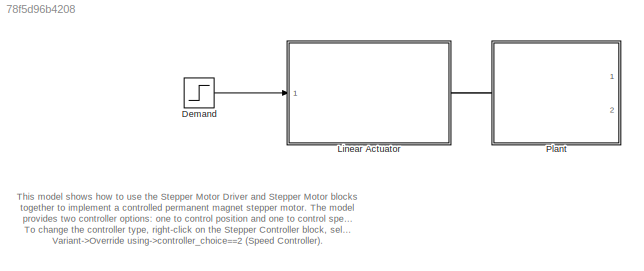
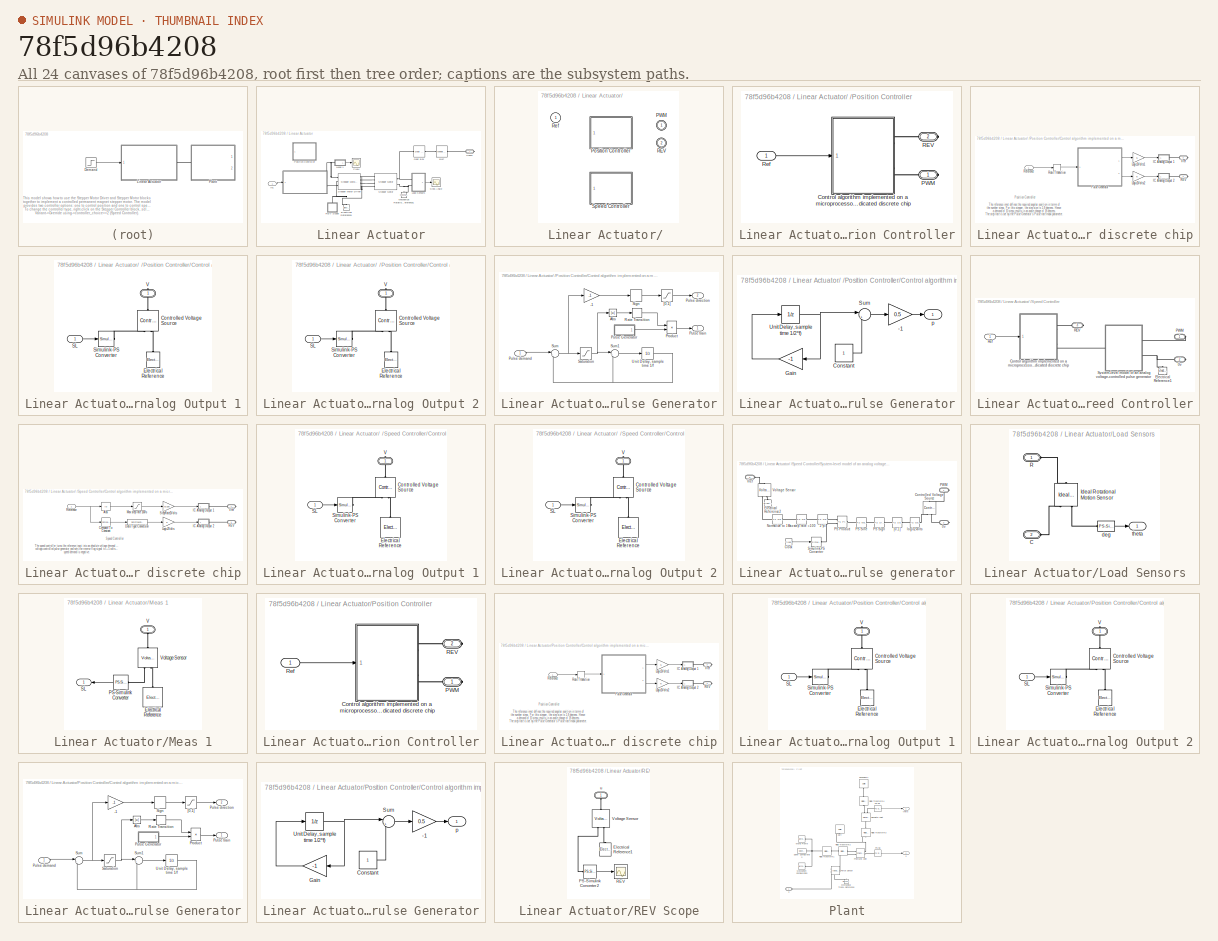
[diagram: thumbnail index - all 24 canvases of the model, root first then tree order]
MODEL slx_78f5d96b4208
KIND model
CONFIG AbsTol = auto
CONFIG FixedStep = 0.001
CONFIG MaxStep = 0.001
CONFIG MinStep = auto
CONFIG PostLoadFcn = controller_choice=1; % Controller variant
CONFIG RelTol = 1e-3
CONFIG SampleTimeConstraint = Unconstrained
CONFIG Solver = ode15s
CONFIG SolverMode = Auto
CONFIG SolverName = ode15s
CONFIG StartTime = 0.0
CONFIG StopTime = 2
BLOCK [Step] Demand
  After = 0
  Before = 10
  SampleTime = 0
BLOCK [SubSystem] Linear Actuator
  Ports = [1, 0, 0, 0, 0, 0, 1]
  RequestExecContextInheritance = off
  Variant = off
BLOCK [SubSystem] Linear Actuator/ 
  AttributesFormatString = %<BlockChoice>
  OverrideUsingVariant = controller_choice==1
  Ports = [1, 0, 0, 0, 0, 0, 2]
  RequestExecContextInheritance = off
  Variant = on
BLOCK [PMIOPort] Linear Actuator/ /PWM
  Port = 1
  Side = Right
BLOCK [SubSystem] Linear Actuator/ /Position Controller
  Ports = [1, 0, 0, 0, 0, 0, 2]
  RequestExecContextInheritance = off
  Variant = off
  VariantControl = controller_choice==1
BLOCK [SubSystem] Linear Actuator/ /Position Controller/Control algorithm implemented on a microprocessor or dedicated discrete chip
  Ports = [1, 0, 0, 0, 0, 0, 2]
  RequestExecContextInheritance = off
  Variant = off
BLOCK [SubSystem] Linear Actuator/ /Position Controller/Control algorithm implemented on a microprocessor or dedicated discrete chip/IC Analog Output 1
  Ports = [1, 0, 0, 0, 0, 0, 1]
  RequestExecContextInheritance = off
  Variant = off
BLOCK [Reference] Linear Actuator/ /Position Controller/Control algorithm implemented on a microprocessor or dedicated discrete chip/IC Analog Output 1/Controlled Voltage Source  REF=fl_lib/Electrical/Electrical Sources/Controlled Voltage
Source
  Ports = [0, 0, 0, 0, 0, 1, 2]
  SourceBlock = fl_lib/Electrical/Electrical Sources/Controlled Voltage\nSource
  SourceType = Controlled Voltage\nSource
BLOCK [Reference] Linear Actuator/ /Position Controller/Control algorithm implemented on a microprocessor or dedicated discrete chip/IC Analog Output 1/Electrical Reference  REF=fl_lib/Electrical/Electrical Elements/Electrical Reference
  Ports = [0, 0, 0, 0, 0, 1]
  SourceBlock = fl_lib/Electrical/Electrical Elements/Electrical Reference
  SourceType = Electrical Reference
BLOCK [Inport] Linear Actuator/ /Position Controller/Control algorithm implemented on a microprocessor or dedicated discrete chip/IC Analog Output 1/SL
  IconDisplay = Port number
BLOCK [Reference] Linear Actuator/ /Position Controller/Control algorithm implemented on a microprocessor or dedicated discrete chip/IC Analog Output 1/Simulink-PS Converter  REF=nesl_utility/Simulink-PS
Converter
  Ports = [1, 0, 0, 0, 0, 0, 1]
  SourceBlock = nesl_utility/Simulink-PS\nConverter
  SourceType = Simulink-PS\nConverter
BLOCK [PMIOPort] Linear Actuator/ /Position Controller/Control algorithm implemented on a microprocessor or dedicated discrete chip/IC Analog Output 1/V
  Port = 1
  Side = Right
BLOCK [SubSystem] Linear Actuator/ /Position Controller/Control algorithm implemented on a microprocessor or dedicated discrete chip/IC Analog Output 2
  Ports = [1, 0, 0, 0, 0, 0, 1]
  RequestExecContextInheritance = off
  Variant = off
BLOCK [Reference] Linear Actuator/ /Position Controller/Control algorithm implemented on a microprocessor or dedicated discrete chip/IC Analog Output 2/Controlled Voltage Source  REF=fl_lib/Electrical/Electrical Sources/Controlled Voltage
Source
  Ports = [0, 0, 0, 0, 0, 1, 2]
  SourceBlock = fl_lib/Electrical/Electrical Sources/Controlled Voltage\nSource
  SourceType = Controlled Voltage\nSource
BLOCK [Reference] Linear Actuator/ /Position Controller/Control algorithm implemented on a microprocessor or dedicated discrete chip/IC Analog Output 2/Electrical Reference  REF=fl_lib/Electrical/Electrical Elements/Electrical Reference
  Ports = [0, 0, 0, 0, 0, 1]
  SourceBlock = fl_lib/Electrical/Electrical Elements/Electrical Reference
  SourceType = Electrical Reference
BLOCK [Inport] Linear Actuator/ /Position Controller/Control algorithm implemented on a microprocessor or dedicated discrete chip/IC Analog Output 2/SL
  IconDisplay = Port number
BLOCK [Reference] Linear Actuator/ /Position Controller/Control algorithm implemented on a microprocessor or dedicated discrete chip/IC Analog Output 2/Simulink-PS Converter  REF=nesl_utility/Simulink-PS
Converter
  Ports = [1, 0, 0, 0, 0, 0, 1]
  SourceBlock = nesl_utility/Simulink-PS\nConverter
  SourceType = Simulink-PS\nConverter
BLOCK [PMIOPort] Linear Actuator/ /Position Controller/Control algorithm implemented on a microprocessor or dedicated discrete chip/IC Analog Output 2/V
  Port = 1
  Side = Right
BLOCK [Gain] Linear Actuator/ /Position Controller/Control algorithm implemented on a microprocessor or dedicated discrete chip/Logic2Volts1
  Gain = 5
  OutDataTypeStr = Inherit: Inherit via internal rule
  ParamDataTypeStr = Inherit: Inherit via internal rule
  SaturateOnIntegerOverflow = off
BLOCK [Gain] Linear Actuator/ /Position Controller/Control algorithm implemented on a microprocessor or dedicated discrete chip/Logic2Volts2
  Gain = 5
  OutDataTypeStr = Inherit: Inherit via internal rule
  ParamDataTypeStr = Inherit: Inherit via internal rule
  SaturateOnIntegerOverflow = off
BLOCK [SubSystem] Linear Actuator/ /Position Controller/Control algorithm implemented on a microprocessor or dedicated discrete chip/Pulse Generator
  Ports = [1, 2]
  RequestExecContextInheritance = off
  Variant = off
BLOCK [Gain] Linear Actuator/ /Position Controller/Control algorithm implemented on a microprocessor or dedicated discrete chip/Pulse Generator/-1
  Gain = -1
  OutDataTypeStr = Inherit: Inherit via internal rule
  ParamDataTypeStr = Inherit: Inherit via internal rule
  SaturateOnIntegerOverflow = off
BLOCK [Abs] Linear Actuator/ /Position Controller/Control algorithm implemented on a microprocessor or dedicated discrete chip/Pulse Generator/Abs
  SaturateOnIntegerOverflow = off
BLOCK [Product] Linear Actuator/ /Position Controller/Control algorithm implemented on a microprocessor or dedicated discrete chip/Pulse Generator/Product
  Ports = [2, 1]
  RndMeth = Floor
BLOCK [Inport] Linear Actuator/ /Position Controller/Control algorithm implemented on a microprocessor or dedicated discrete chip/Pulse Generator/Pulse  demand
  IconDisplay = Port number
  SampleTime = 1/f
BLOCK [SubSystem] Linear Actuator/ /Position Controller/Control algorithm implemented on a microprocessor or dedicated discrete chip/Pulse Generator/Pulse Generator
  Ports = [0, 1]
  RequestExecContextInheritance = off
  Variant = off
BLOCK [Gain] Linear Actuator/ /Position Controller/Control algorithm implemented on a microprocessor or dedicated discrete chip/Pulse Generator/Pulse Generator/-1
  Gain = 0.5
  OutDataTypeStr = Inherit: Inherit via internal rule
  ParamDataTypeStr = Inherit: Inherit via internal rule
  SaturateOnIntegerOverflow = off
BLOCK [Constant] Linear Actuator/ /Position Controller/Control algorithm implemented on a microprocessor or dedicated discrete chip/Pulse Generator/Pulse Generator/Constant
  SampleTime = 1/(2*f)
BLOCK [Gain] Linear Actuator/ /Position Controller/Control algorithm implemented on a microprocessor or dedicated discrete chip/Pulse Generator/Pulse Generator/Gain
  Gain = -1
  OutDataTypeStr = Inherit: Inherit via internal rule
  ParamDataTypeStr = Inherit: Inherit via internal rule
  SaturateOnIntegerOverflow = off
BLOCK [Sum] Linear Actuator/ /Position Controller/Control algorithm implemented on a microprocessor or dedicated discrete chip/Pulse Generator/Pulse Generator/Sum
  IconShape = round
  InputSameDT = off
  Inputs = |++
  OutDataTypeStr = Inherit: Inherit via internal rule
  Ports = [2, 1]
  SaturateOnIntegerOverflow = off
BLOCK [UnitDelay] Linear Actuator/ /Position Controller/Control algorithm implemented on a microprocessor or dedicated discrete chip/Pulse Generator/Pulse Generator/Unit Delay, sample time 1//2*f)
  InitialCondition = -1
  SampleTime = 1/(2*f)
BLOCK [Outport] Linear Actuator/ /Position Controller/Control algorithm implemented on a microprocessor or dedicated discrete chip/Pulse Generator/Pulse Generator/p
  IconDisplay = Port number
BLOCK [Outport] Linear Actuator/ /Position Controller/Control algorithm implemented on a microprocessor or dedicated discrete chip/Pulse Generator/Pulse direction
  IconDisplay = Port number
  Port = 2
BLOCK [Outport] Linear Actuator/ /Position Controller/Control algorithm implemented on a microprocessor or dedicated discrete chip/Pulse Generator/Pulse train
  IconDisplay = Port number
BLOCK [RateTransition] Linear Actuator/ /Position Controller/Control algorithm implemented on a microprocessor or dedicated discrete chip/Pulse Generator/Rate Transition
  Deterministic = off
BLOCK [Saturate] Linear Actuator/ /Position Controller/Control algorithm implemented on a microprocessor or dedicated discrete chip/Pulse Generator/Saturation
  InputPortMap = u0
  LowerLimit = -1
  Ports = [1, 1]
  UpperLimit = 1
BLOCK [Signum] Linear Actuator/ /Position Controller/Control algorithm implemented on a microprocessor or dedicated discrete chip/Pulse Generator/Sign
BLOCK [Sum] Linear Actuator/ /Position Controller/Control algorithm implemented on a microprocessor or dedicated discrete chip/Pulse Generator/Sum
  IconShape = round
  InputSameDT = off
  Inputs = |+-
  OutDataTypeStr = Inherit: Inherit via internal rule
  Ports = [2, 1]
  SaturateOnIntegerOverflow = off
BLOCK [Sum] Linear Actuator/ /Position Controller/Control algorithm implemented on a microprocessor or dedicated discrete chip/Pulse Generator/Sum1
  IconShape = round
  InputSameDT = off
  Inputs = |++
  OutDataTypeStr = Inherit: Inherit via internal rule
  Ports = [2, 1]
  SaturateOnIntegerOverflow = off
BLOCK [UnitDelay] Linear Actuator/ /Position Controller/Control algorithm implemented on a microprocessor or dedicated discrete chip/Pulse Generator/Unit Delay, sample time 1//f
  SampleTime = 1/f
BLOCK [Saturate] Linear Actuator/ /Position Controller/Control algorithm implemented on a microprocessor or dedicated discrete chip/Pulse Generator/[0,1]
  InputPortMap = u0
  LowerLimit = 0
  Ports = [1, 1]
  UpperLimit = 1
BLOCK [PMIOPort] Linear Actuator/ /Position Controller/Control algorithm implemented on a microprocessor or dedicated discrete chip/REV
  Port = 1
  Side = Right
BLOCK [RateTransition] Linear Actuator/ /Position Controller/Control algorithm implemented on a microprocessor or dedicated discrete chip/Rate Transition
  Deterministic = off
BLOCK [Inport] Linear Actuator/ /Position Controller/Control algorithm implemented on a microprocessor or dedicated discrete chip/Reference
  IconDisplay = Port number
BLOCK [PMIOPort] Linear Actuator/ /Position Controller/Control algorithm implemented on a microprocessor or dedicated discrete chip/Vref
  Port = 2
  Side = Right
BLOCK [PMIOPort] Linear Actuator/ /Position Controller/PWM
  Port = 1
  Side = Right
BLOCK [PMIOPort] Linear Actuator/ /Position Controller/REV
  Port = 2
  Side = Right
BLOCK [Inport] Linear Actuator/ /Position Controller/Ref
  IconDisplay = Port number
BLOCK [PMIOPort] Linear Actuator/ /REV
  Port = 2
  Side = Right
BLOCK [Inport] Linear Actuator/ /Ref
  IconDisplay = Port number
BLOCK [SubSystem] Linear Actuator/ /Speed Controller
  Ports = [1, 0, 0, 0, 0, 0, 3]
  RequestExecContextInheritance = off
  Variant = off
  VariantControl = controller_choice==2
BLOCK [PMIOPort] Linear Actuator/ /Speed Controller/0v
  Port = 2
  Side = Right
BLOCK [SubSystem] Linear Actuator/ /Speed Controller/Control algorithm implemented on a microprocessor or dedicated discrete chip
  Ports = [1, 0, 0, 0, 0, 0, 2]
  RequestExecContextInheritance = off
  Variant = off
BLOCK [Abs] Linear Actuator/ /Speed Controller/Control algorithm implemented on a microprocessor or dedicated discrete chip/Abs
  SaturateOnIntegerOverflow = off
BLOCK [Reference] Linear Actuator/ /Speed Controller/Control algorithm implemented on a microprocessor or dedicated discrete chip/Compare To Constant  REF=simulink/Logic and Bit
Operations/Compare
To Constant
  Ports = [1, 1]
  SourceBlock = simulink/Logic and Bit\nOperations/Compare\nTo Constant
  SourceType = Compare To Constant
BLOCK [DataTypeConversion] Linear Actuator/ /Speed Controller/Control algorithm implemented on a microprocessor or dedicated discrete chip/Data Type Conversion
  RndMeth = Floor
  SaturateOnIntegerOverflow = off
BLOCK [SubSystem] Linear Actuator/ /Speed Controller/Control algorithm implemented on a microprocessor or dedicated discrete chip/IC Analog Output 1
  Ports = [1, 0, 0, 0, 0, 0, 1]
  RequestExecContextInheritance = off
  Variant = off
BLOCK [Reference] Linear Actuator/ /Speed Controller/Control algorithm implemented on a microprocessor or dedicated discrete chip/IC Analog Output 1/Controlled Voltage Source  REF=fl_lib/Electrical/Electrical Sources/Controlled Voltage
Source
  Ports = [0, 0, 0, 0, 0, 1, 2]
  SourceBlock = fl_lib/Electrical/Electrical Sources/Controlled Voltage\nSource
  SourceType = Controlled Voltage\nSource
BLOCK [Reference] Linear Actuator/ /Speed Controller/Control algorithm implemented on a microprocessor or dedicated discrete chip/IC Analog Output 1/Electrical Reference  REF=fl_lib/Electrical/Electrical Elements/Electrical Reference
  Ports = [0, 0, 0, 0, 0, 1]
  SourceBlock = fl_lib/Electrical/Electrical Elements/Electrical Reference
  SourceType = Electrical Reference
BLOCK [Inport] Linear Actuator/ /Speed Controller/Control algorithm implemented on a microprocessor or dedicated discrete chip/IC Analog Output 1/SL
  IconDisplay = Port number
BLOCK [Reference] Linear Actuator/ /Speed Controller/Control algorithm implemented on a microprocessor or dedicated discrete chip/IC Analog Output 1/Simulink-PS Converter  REF=nesl_utility/Simulink-PS
Converter
  Ports = [1, 0, 0, 0, 0, 0, 1]
  SourceBlock = nesl_utility/Simulink-PS\nConverter
  SourceType = Simulink-PS\nConverter
BLOCK [PMIOPort] Linear Actuator/ /Speed Controller/Control algorithm implemented on a microprocessor or dedicated discrete chip/IC Analog Output 1/V
  Port = 1
  Side = Right
BLOCK [SubSystem] Linear Actuator/ /Speed Controller/Control algorithm implemented on a microprocessor or dedicated discrete chip/IC Analog Output 2
  Ports = [1, 0, 0, 0, 0, 0, 1]
  RequestExecContextInheritance = off
  Variant = off
BLOCK [Reference] Linear Actuator/ /Speed Controller/Control algorithm implemented on a microprocessor or dedicated discrete chip/IC Analog Output 2/Controlled Voltage Source  REF=fl_lib/Electrical/Electrical Sources/Controlled Voltage
Source
  Ports = [0, 0, 0, 0, 0, 1, 2]
  SourceBlock = fl_lib/Electrical/Electrical Sources/Controlled Voltage\nSource
  SourceType = Controlled Voltage\nSource
BLOCK [Reference] Linear Actuator/ /Speed Controller/Control algorithm implemented on a microprocessor or dedicated discrete chip/IC Analog Output 2/Electrical Reference  REF=fl_lib/Electrical/Electrical Elements/Electrical Reference
  Ports = [0, 0, 0, 0, 0, 1]
  SourceBlock = fl_lib/Electrical/Electrical Elements/Electrical Reference
  SourceType = Electrical Reference
BLOCK [Inport] Linear Actuator/ /Speed Controller/Control algorithm implemented on a microprocessor or dedicated discrete chip/IC Analog Output 2/SL
  IconDisplay = Port number
BLOCK [Reference] Linear Actuator/ /Speed Controller/Control algorithm implemented on a microprocessor or dedicated discrete chip/IC Analog Output 2/Simulink-PS Converter  REF=nesl_utility/Simulink-PS
Converter
  Ports = [1, 0, 0, 0, 0, 0, 1]
  SourceBlock = nesl_utility/Simulink-PS\nConverter
  SourceType = Simulink-PS\nConverter
BLOCK [PMIOPort] Linear Actuator/ /Speed Controller/Control algorithm implemented on a microprocessor or dedicated discrete chip/IC Analog Output 2/V
  Port = 1
  Side = Right
BLOCK [Gain] Linear Actuator/ /Speed Controller/Control algorithm implemented on a microprocessor or dedicated discrete chip/Logic2Volts
  Gain = 5
  OutDataTypeStr = Inherit: Inherit via internal rule
  ParamDataTypeStr = Inherit: Inherit via internal rule
  SaturateOnIntegerOverflow = off
BLOCK [Saturate] Linear Actuator/ /Speed Controller/Control algorithm implemented on a microprocessor or dedicated discrete chip/Max step rate 100//s
  InputPortMap = u0
  LowerLimit = 0
  Ports = [1, 1]
  UpperLimit = 100
BLOCK [PMIOPort] Linear Actuator/ /Speed Controller/Control algorithm implemented on a microprocessor or dedicated discrete chip/REV
  Port = 1
  Side = Right
BLOCK [Inport] Linear Actuator/ /Speed Controller/Control algorithm implemented on a microprocessor or dedicated discrete chip/Reference
  IconDisplay = Port number
BLOCK [Gain] Linear Actuator/ /Speed Controller/Control algorithm implemented on a microprocessor or dedicated discrete chip/StepRate2Volts
  Gain = 5/100
  OutDataTypeStr = Inherit: Inherit via internal rule
  ParamDataTypeStr = Inherit: Inherit via internal rule
  SaturateOnIntegerOverflow = off
BLOCK [PMIOPort] Linear Actuator/ /Speed Controller/Control algorithm implemented on a microprocessor or dedicated discrete chip/Vref
  Port = 2
  Side = Right
BLOCK [Reference] Linear Actuator/ /Speed Controller/Electrical Reference1  REF=fl_lib/Electrical/Electrical Elements/Electrical Reference
  Ports = [0, 0, 0, 0, 0, 1]
  SourceBlock = fl_lib/Electrical/Electrical Elements/Electrical Reference
  SourceType = Electrical Reference
BLOCK [PMIOPort] Linear Actuator/ /Speed Controller/PWM
  Port = 1
  Side = Right
BLOCK [PMIOPort] Linear Actuator/ /Speed Controller/REV
  Port = 3
  Side = Right
BLOCK [Inport] Linear Actuator/ /Speed Controller/Ref
  IconDisplay = Port number
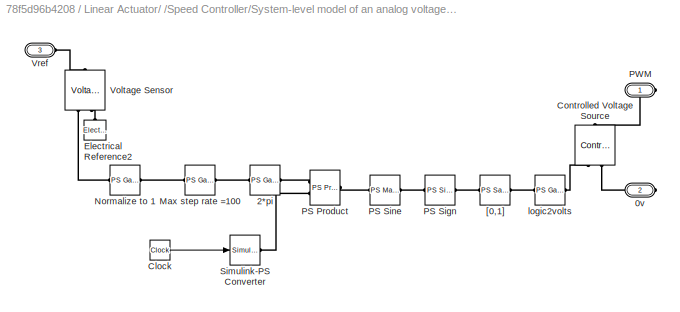
BLOCK [SubSystem] Linear Actuator/ /Speed Controller/System-level model of an analog voltage-controlled pulse generator
  Ports = [0, 0, 0, 0, 0, 1, 2]
  RequestExecContextInheritance = off
  Variant = off
BLOCK [PMIOPort] Linear Actuator/ /Speed Controller/System-level model of an analog voltage-controlled pulse generator/0v
  Port = 2
  Side = Right
BLOCK [Reference] Linear Actuator/ /Speed Controller/System-level model of an analog voltage-controlled pulse generator/2*pi  REF=fl_lib/Physical Signals/Functions/PS Gain
  Ports = [0, 0, 0, 0, 0, 1, 1]
  SourceBlock = fl_lib/Physical Signals/Functions/PS Gain
  SourceType = PS Gain
BLOCK [Clock] Linear Actuator/ /Speed Controller/System-level model of an analog voltage-controlled pulse generator/Clock
BLOCK [Reference] Linear Actuator/ /Speed Controller/System-level model of an analog voltage-controlled pulse generator/Controlled Voltage Source  REF=fl_lib/Electrical/Electrical Sources/Controlled Voltage
Source
  Ports = [0, 0, 0, 0, 0, 1, 2]
  SourceBlock = fl_lib/Electrical/Electrical Sources/Controlled Voltage\nSource
  SourceType = Controlled Voltage\nSource
BLOCK [Reference] Linear Actuator/ /Speed Controller/System-level model of an analog voltage-controlled pulse generator/Electrical Reference2  REF=fl_lib/Electrical/Electrical Elements/Electrical Reference
  Ports = [0, 0, 0, 0, 0, 1]
  SourceBlock = fl_lib/Electrical/Electrical Elements/Electrical Reference
  SourceType = Electrical Reference
BLOCK [Reference] Linear Actuator/ /Speed Controller/System-level model of an analog voltage-controlled pulse generator/Max step rate =100  REF=fl_lib/Physical Signals/Functions/PS Gain
  Ports = [0, 0, 0, 0, 0, 1, 1]
  SourceBlock = fl_lib/Physical Signals/Functions/PS Gain
  SourceType = PS Gain
BLOCK [Reference] Linear Actuator/ /Speed Controller/System-level model of an analog voltage-controlled pulse generator/Normalize to 1  REF=fl_lib/Physical Signals/Functions/PS Gain
  Ports = [0, 0, 0, 0, 0, 1, 1]
  SourceBlock = fl_lib/Physical Signals/Functions/PS Gain
  SourceType = PS Gain
BLOCK [Reference] Linear Actuator/ /Speed Controller/System-level model of an analog voltage-controlled pulse generator/PS Product  REF=fl_lib/Physical Signals/Functions/PS Product
  Ports = [0, 0, 0, 0, 0, 2, 1]
  SourceBlock = fl_lib/Physical Signals/Functions/PS Product
  SourceType = PS Product
BLOCK [Reference] Linear Actuator/ /Speed Controller/System-level model of an analog voltage-controlled pulse generator/PS Sign  REF=fl_lib/Physical Signals/Nonlinear Operators/PS Sign
  Ports = [0, 0, 0, 0, 0, 1, 1]
  SourceBlock = fl_lib/Physical Signals/Nonlinear Operators/PS Sign
  SourceType = PS Sign
BLOCK [Reference] Linear Actuator/ /Speed Controller/System-level model of an analog voltage-controlled pulse generator/PS Sine  REF=fl_lib/Physical Signals/Functions/PS Math Function
  Ports = [0, 0, 0, 0, 0, 1, 1]
  SourceBlock = fl_lib/Physical Signals/Functions/PS Math Function
  SourceType = PS Math Function
BLOCK [PMIOPort] Linear Actuator/ /Speed Controller/System-level model of an analog voltage-controlled pulse generator/PWM
  Port = 1
  Side = Right
BLOCK [Reference] Linear Actuator/ /Speed Controller/System-level model of an analog voltage-controlled pulse generator/Simulink-PS Converter  REF=nesl_utility/Simulink-PS
Converter
  Ports = [1, 0, 0, 0, 0, 0, 1]
  SourceBlock = nesl_utility/Simulink-PS\nConverter
  SourceType = Simulink-PS\nConverter
BLOCK [Reference] Linear Actuator/ /Speed Controller/System-level model of an analog voltage-controlled pulse generator/Voltage Sensor  REF=fl_lib/Electrical/Electrical Sensors/Voltage Sensor
  Ports = [0, 0, 0, 0, 0, 1, 2]
  SourceBlock = fl_lib/Electrical/Electrical Sensors/Voltage Sensor
  SourceType = Voltage Sensor
BLOCK [PMIOPort] Linear Actuator/ /Speed Controller/System-level model of an analog voltage-controlled pulse generator/Vref
  Port = 3
  Side = Left
BLOCK [Reference] Linear Actuator/ /Speed Controller/System-level model of an analog voltage-controlled pulse generator/[0,1]  REF=fl_lib/Physical Signals/Nonlinear Operators/PS Saturation
  Ports = [0, 0, 0, 0, 0, 1, 1]
  SourceBlock = fl_lib/Physical Signals/Nonlinear Operators/PS Saturation
  SourceType = PS Saturation
BLOCK [Reference] Linear Actuator/ /Speed Controller/System-level model of an analog voltage-controlled pulse generator/logic2volts  REF=fl_lib/Physical Signals/Functions/PS Gain
  Ports = [0, 0, 0, 0, 0, 1, 1]
  SourceBlock = fl_lib/Physical Signals/Functions/PS Gain
  SourceType = PS Gain
BLOCK [Reference] Linear Actuator/Belt  REF=fl_lib/Mechanical/Mechanisms/Wheel and Axle
  Ports = [0, 0, 0, 0, 0, 1, 1]
  SourceBlock = fl_lib/Mechanical/Mechanisms/Wheel and Axle
  SourceType = Wheel and Axle
BLOCK [PMIOPort] Linear Actuator/Conn1
  Port = 1
  Side = Right
BLOCK [Reference] Linear Actuator/Electrical Reference1  REF=fl_lib/Electrical/Electrical Elements/Electrical Reference
  Ports = [0, 0, 0, 0, 0, 1]
  SourceBlock = fl_lib/Electrical/Electrical Elements/Electrical Reference
  SourceType = Electrical Reference
BLOCK [Reference] Linear Actuator/Gear Box  REF=fl_lib/Mechanical/Mechanisms/Gear Box
  Ports = [0, 0, 0, 0, 0, 1, 1]
  SourceBlock = fl_lib/Mechanical/Mechanisms/Gear Box
  SourceType = Gear Box
BLOCK [Inport] Linear Actuator/In1
  IconDisplay = Port number
BLOCK [SubSystem] Linear Actuator/Load Sensors
  Ports = [0, 1, 0, 0, 0, 2]
  RequestExecContextInheritance = off
  Variant = off
BLOCK [PMIOPort] Linear Actuator/Load Sensors/C
  Port = 2
  Side = Left
BLOCK [Reference] Linear Actuator/Load Sensors/Ideal Rotational Motion Sensor  REF=fl_lib/Mechanical/Mechanical Sensors/Ideal Rotational
Motion Sensor
  Ports = [0, 0, 0, 0, 0, 1, 3]
  SourceBlock = fl_lib/Mechanical/Mechanical Sensors/Ideal Rotational\nMotion Sensor
  SourceType = Ideal Rotational\nMotion Sensor
BLOCK [PMIOPort] Linear Actuator/Load Sensors/R
  Port = 1
  Side = Left
BLOCK [Reference] Linear Actuator/Load Sensors/deg  REF=nesl_utility/PS-Simulink
Converter
  Ports = [0, 1, 0, 0, 0, 1]
  SourceBlock = nesl_utility/PS-Simulink\nConverter
  SourceType = PS-Simulink\nConverter
BLOCK [Outport] Linear Actuator/Load Sensors/theta
  IconDisplay = Port number
BLOCK [SubSystem] Linear Actuator/Meas 1
  Ports = [0, 1, 0, 0, 0, 1]
  RequestExecContextInheritance = off
  Variant = off
BLOCK [Reference] Linear Actuator/Meas 1/Electrical Reference  REF=fl_lib/Electrical/Electrical Elements/Electrical Reference
  Ports = [0, 0, 0, 0, 0, 1]
  SourceBlock = fl_lib/Electrical/Electrical Elements/Electrical Reference
  SourceType = Electrical Reference
BLOCK [Reference] Linear Actuator/Meas 1/PS-Simulink Converter  REF=nesl_utility/PS-Simulink
Converter
  Ports = [0, 1, 0, 0, 0, 1]
  SourceBlock = nesl_utility/PS-Simulink\nConverter
  SourceType = PS-Simulink\nConverter
BLOCK [Outport] Linear Actuator/Meas 1/SL
  IconDisplay = Port number
BLOCK [PMIOPort] Linear Actuator/Meas 1/V
  Port = 1
  Side = Left
BLOCK [Reference] Linear Actuator/Meas 1/Voltage Sensor  REF=fl_lib/Electrical/Electrical Sensors/Voltage Sensor
  Ports = [0, 0, 0, 0, 0, 1, 2]
  SourceBlock = fl_lib/Electrical/Electrical Sensors/Voltage Sensor
  SourceType = Voltage Sensor
BLOCK [Reference] Linear Actuator/Mechanical Rotational Reference1  REF=fl_lib/Mechanical/Rotational Elements/Mechanical
Rotational Reference
  Ports = [0, 0, 0, 0, 0, 1]
  SourceBlock = fl_lib/Mechanical/Rotational Elements/Mechanical\nRotational Reference
  SourceType = Mechanical\nRotational Reference
BLOCK [Scope] Linear Actuator/PWM
  Ports = [1]
  ScopeSpecificationString = Simulink.scopes.TimeScopeBlockCfg('CurrentConfiguration', extmgr.ConfigurationSet(extmgr.Configuration('Core','General UI',true),extmgr.Configuration('Core','Source UI',true),extmgr.Configuration('Sources','WiredSimulink',true,'DataLogging',true,'DataLoggingVariableName','RPM','DataLoggingSaveFormat','StructureWithTime','DataLoggingDecimation','1','DataLoggingDecimateData',true),extmgr.Configurati...<+1675ch>
BLOCK [SubSystem] Linear Actuator/Position Controller
  Ports = [1, 0, 0, 0, 0, 0, 2]
  RequestExecContextInheritance = off
  Variant = off
  VariantControl = controller_choice==1
BLOCK [SubSystem] Linear Actuator/Position Controller/Control algorithm implemented on a microprocessor or dedicated discrete chip
  Ports = [1, 0, 0, 0, 0, 0, 2]
  RequestExecContextInheritance = off
  Variant = off
BLOCK [SubSystem] Linear Actuator/Position Controller/Control algorithm implemented on a microprocessor or dedicated discrete chip/IC Analog Output 1
  Ports = [1, 0, 0, 0, 0, 0, 1]
  RequestExecContextInheritance = off
  Variant = off
BLOCK [Reference] Linear Actuator/Position Controller/Control algorithm implemented on a microprocessor or dedicated discrete chip/IC Analog Output 1/Controlled Voltage Source  REF=fl_lib/Electrical/Electrical Sources/Controlled Voltage
Source
  Ports = [0, 0, 0, 0, 0, 1, 2]
  SourceBlock = fl_lib/Electrical/Electrical Sources/Controlled Voltage\nSource
  SourceType = Controlled Voltage\nSource
BLOCK [Reference] Linear Actuator/Position Controller/Control algorithm implemented on a microprocessor or dedicated discrete chip/IC Analog Output 1/Electrical Reference  REF=fl_lib/Electrical/Electrical Elements/Electrical Reference
  Ports = [0, 0, 0, 0, 0, 1]
  SourceBlock = fl_lib/Electrical/Electrical Elements/Electrical Reference
  SourceType = Electrical Reference
BLOCK [Inport] Linear Actuator/Position Controller/Control algorithm implemented on a microprocessor or dedicated discrete chip/IC Analog Output 1/SL
  IconDisplay = Port number
BLOCK [Reference] Linear Actuator/Position Controller/Control algorithm implemented on a microprocessor or dedicated discrete chip/IC Analog Output 1/Simulink-PS Converter  REF=nesl_utility/Simulink-PS
Converter
  Ports = [1, 0, 0, 0, 0, 0, 1]
  SourceBlock = nesl_utility/Simulink-PS\nConverter
  SourceType = Simulink-PS\nConverter
BLOCK [PMIOPort] Linear Actuator/Position Controller/Control algorithm implemented on a microprocessor or dedicated discrete chip/IC Analog Output 1/V
  Port = 1
  Side = Right
BLOCK [SubSystem] Linear Actuator/Position Controller/Control algorithm implemented on a microprocessor or dedicated discrete chip/IC Analog Output 2
  Ports = [1, 0, 0, 0, 0, 0, 1]
  RequestExecContextInheritance = off
  Variant = off
BLOCK [Reference] Linear Actuator/Position Controller/Control algorithm implemented on a microprocessor or dedicated discrete chip/IC Analog Output 2/Controlled Voltage Source  REF=fl_lib/Electrical/Electrical Sources/Controlled Voltage
Source
  Ports = [0, 0, 0, 0, 0, 1, 2]
  SourceBlock = fl_lib/Electrical/Electrical Sources/Controlled Voltage\nSource
  SourceType = Controlled Voltage\nSource
BLOCK [Reference] Linear Actuator/Position Controller/Control algorithm implemented on a microprocessor or dedicated discrete chip/IC Analog Output 2/Electrical Reference  REF=fl_lib/Electrical/Electrical Elements/Electrical Reference
  Ports = [0, 0, 0, 0, 0, 1]
  SourceBlock = fl_lib/Electrical/Electrical Elements/Electrical Reference
  SourceType = Electrical Reference
BLOCK [Inport] Linear Actuator/Position Controller/Control algorithm implemented on a microprocessor or dedicated discrete chip/IC Analog Output 2/SL
  IconDisplay = Port number
BLOCK [Reference] Linear Actuator/Position Controller/Control algorithm implemented on a microprocessor or dedicated discrete chip/IC Analog Output 2/Simulink-PS Converter  REF=nesl_utility/Simulink-PS
Converter
  Ports = [1, 0, 0, 0, 0, 0, 1]
  SourceBlock = nesl_utility/Simulink-PS\nConverter
  SourceType = Simulink-PS\nConverter
BLOCK [PMIOPort] Linear Actuator/Position Controller/Control algorithm implemented on a microprocessor or dedicated discrete chip/IC Analog Output 2/V
  Port = 1
  Side = Right
BLOCK [Gain] Linear Actuator/Position Controller/Control algorithm implemented on a microprocessor or dedicated discrete chip/Logic2Volts1
  Gain = 5
  OutDataTypeStr = Inherit: Inherit via internal rule
  ParamDataTypeStr = Inherit: Inherit via internal rule
  SaturateOnIntegerOverflow = off
BLOCK [Gain] Linear Actuator/Position Controller/Control algorithm implemented on a microprocessor or dedicated discrete chip/Logic2Volts2
  Gain = 5
  OutDataTypeStr = Inherit: Inherit via internal rule
  ParamDataTypeStr = Inherit: Inherit via internal rule
  SaturateOnIntegerOverflow = off
BLOCK [SubSystem] Linear Actuator/Position Controller/Control algorithm implemented on a microprocessor or dedicated discrete chip/Pulse Generator
  Ports = [1, 2]
  RequestExecContextInheritance = off
  Variant = off
BLOCK [Gain] Linear Actuator/Position Controller/Control algorithm implemented on a microprocessor or dedicated discrete chip/Pulse Generator/-1
  Gain = -1
  OutDataTypeStr = Inherit: Inherit via internal rule
  ParamDataTypeStr = Inherit: Inherit via internal rule
  SaturateOnIntegerOverflow = off
BLOCK [Abs] Linear Actuator/Position Controller/Control algorithm implemented on a microprocessor or dedicated discrete chip/Pulse Generator/Abs
  SaturateOnIntegerOverflow = off
BLOCK [Product] Linear Actuator/Position Controller/Control algorithm implemented on a microprocessor or dedicated discrete chip/Pulse Generator/Product
  Ports = [2, 1]
  RndMeth = Floor
BLOCK [Inport] Linear Actuator/Position Controller/Control algorithm implemented on a microprocessor or dedicated discrete chip/Pulse Generator/Pulse  demand
  IconDisplay = Port number
  SampleTime = 1/f
BLOCK [SubSystem] Linear Actuator/Position Controller/Control algorithm implemented on a microprocessor or dedicated discrete chip/Pulse Generator/Pulse Generator
  Ports = [0, 1]
  RequestExecContextInheritance = off
  Variant = off
BLOCK [Gain] Linear Actuator/Position Controller/Control algorithm implemented on a microprocessor or dedicated discrete chip/Pulse Generator/Pulse Generator/-1
  Gain = 0.5
  OutDataTypeStr = Inherit: Inherit via internal rule
  ParamDataTypeStr = Inherit: Inherit via internal rule
  SaturateOnIntegerOverflow = off
BLOCK [Constant] Linear Actuator/Position Controller/Control algorithm implemented on a microprocessor or dedicated discrete chip/Pulse Generator/Pulse Generator/Constant
  SampleTime = 1/(2*f)
BLOCK [Gain] Linear Actuator/Position Controller/Control algorithm implemented on a microprocessor or dedicated discrete chip/Pulse Generator/Pulse Generator/Gain
  Gain = -1
  OutDataTypeStr = Inherit: Inherit via internal rule
  ParamDataTypeStr = Inherit: Inherit via internal rule
  SaturateOnIntegerOverflow = off
BLOCK [Sum] Linear Actuator/Position Controller/Control algorithm implemented on a microprocessor or dedicated discrete chip/Pulse Generator/Pulse Generator/Sum
  IconShape = round
  InputSameDT = off
  Inputs = |++
  OutDataTypeStr = Inherit: Inherit via internal rule
  Ports = [2, 1]
  SaturateOnIntegerOverflow = off
BLOCK [UnitDelay] Linear Actuator/Position Controller/Control algorithm implemented on a microprocessor or dedicated discrete chip/Pulse Generator/Pulse Generator/Unit Delay, sample time 1//2*f)
  InitialCondition = -1
  SampleTime = 1/(2*f)
BLOCK [Outport] Linear Actuator/Position Controller/Control algorithm implemented on a microprocessor or dedicated discrete chip/Pulse Generator/Pulse Generator/p
  IconDisplay = Port number
BLOCK [Outport] Linear Actuator/Position Controller/Control algorithm implemented on a microprocessor or dedicated discrete chip/Pulse Generator/Pulse direction
  IconDisplay = Port number
  Port = 2
BLOCK [Outport] Linear Actuator/Position Controller/Control algorithm implemented on a microprocessor or dedicated discrete chip/Pulse Generator/Pulse train
  IconDisplay = Port number
BLOCK [RateTransition] Linear Actuator/Position Controller/Control algorithm implemented on a microprocessor or dedicated discrete chip/Pulse Generator/Rate Transition
  Deterministic = off
BLOCK [Saturate] Linear Actuator/Position Controller/Control algorithm implemented on a microprocessor or dedicated discrete chip/Pulse Generator/Saturation
  InputPortMap = u0
  LowerLimit = -1
  Ports = [1, 1]
  UpperLimit = 1
BLOCK [Signum] Linear Actuator/Position Controller/Control algorithm implemented on a microprocessor or dedicated discrete chip/Pulse Generator/Sign
BLOCK [Sum] Linear Actuator/Position Controller/Control algorithm implemented on a microprocessor or dedicated discrete chip/Pulse Generator/Sum
  IconShape = round
  InputSameDT = off
  Inputs = |+-
  OutDataTypeStr = Inherit: Inherit via internal rule
  Ports = [2, 1]
  SaturateOnIntegerOverflow = off
BLOCK [Sum] Linear Actuator/Position Controller/Control algorithm implemented on a microprocessor or dedicated discrete chip/Pulse Generator/Sum1
  IconShape = round
  InputSameDT = off
  Inputs = |++
  OutDataTypeStr = Inherit: Inherit via internal rule
  Ports = [2, 1]
  SaturateOnIntegerOverflow = off
BLOCK [UnitDelay] Linear Actuator/Position Controller/Control algorithm implemented on a microprocessor or dedicated discrete chip/Pulse Generator/Unit Delay, sample time 1//f
  SampleTime = 1/f
BLOCK [Saturate] Linear Actuator/Position Controller/Control algorithm implemented on a microprocessor or dedicated discrete chip/Pulse Generator/[0,1]
  InputPortMap = u0
  LowerLimit = 0
  Ports = [1, 1]
  UpperLimit = 1
BLOCK [PMIOPort] Linear Actuator/Position Controller/Control algorithm implemented on a microprocessor or dedicated discrete chip/REV
  Port = 1
  Side = Right
BLOCK [RateTransition] Linear Actuator/Position Controller/Control algorithm implemented on a microprocessor or dedicated discrete chip/Rate Transition
  Deterministic = off
BLOCK [Inport] Linear Actuator/Position Controller/Control algorithm implemented on a microprocessor or dedicated discrete chip/Reference
  IconDisplay = Port number
BLOCK [PMIOPort] Linear Actuator/Position Controller/Control algorithm implemented on a microprocessor or dedicated discrete chip/Vref
  Port = 2
  Side = Right
BLOCK [PMIOPort] Linear Actuator/Position Controller/PWM
  Port = 1
  Side = Right
BLOCK [PMIOPort] Linear Actuator/Position Controller/REV
  Port = 2
  Side = Right
BLOCK [Inport] Linear Actuator/Position Controller/Ref
  IconDisplay = Port number
BLOCK [SubSystem] Linear Actuator/REV Scope
  Ports = [0, 0, 0, 0, 0, 1]
  RequestExecContextInheritance = off
  Variant = off
BLOCK [Reference] Linear Actuator/REV Scope/Electrical Reference1  REF=fl_lib/Electrical/Electrical Elements/Electrical Reference
  Ports = [0, 0, 0, 0, 0, 1]
  SourceBlock = fl_lib/Electrical/Electrical Elements/Electrical Reference
  SourceType = Electrical Reference
BLOCK [Reference] Linear Actuator/REV Scope/PS-Simulink Converter 2  REF=nesl_utility/PS-Simulink
Converter
  Ports = [0, 1, 0, 0, 0, 1]
  SourceBlock = nesl_utility/PS-Simulink\nConverter
  SourceType = PS-Simulink\nConverter
BLOCK [Scope] Linear Actuator/REV Scope/REV
  Ports = [1]
  ScopeSpecificationString = C++SS(StrPVP('Location','[197, 372, 521, 611]'),StrPVP('Open','off'),MxPVP('AxesTitles',24,'struct(''axes1'',''%<SignalLabel>'')'),StrPVP('YMin','-1'),StrPVP('YMax','6'),StrPVP('SaveName','ScopeData6'),StrPVP('DataFormat','StructureWithTime'),StrPVP('LimitDataPoints','off'),StrPVP('BlockParamSampleTime','0'),StrPVP('Decimation','1'),StrPVP('BlockParamSampleInput','off'))
BLOCK [Reference] Linear Actuator/REV Scope/Voltage Sensor  REF=fl_lib/Electrical/Electrical Sensors/Voltage Sensor
  Ports = [0, 0, 0, 0, 0, 1, 2]
  SourceBlock = fl_lib/Electrical/Electrical Sensors/Voltage Sensor
  SourceType = Voltage Sensor
BLOCK [PMIOPort] Linear Actuator/REV Scope/u
  Port = 1
  Side = Left
BLOCK [Scope] Linear Actuator/Step Angle
  Ports = [1]
  ScopeSpecificationString = Simulink.scopes.TimeScopeBlockCfg('CurrentConfiguration', extmgr.ConfigurationSet(extmgr.Configuration('Core','General UI',true),extmgr.Configuration('Core','Source UI',true),extmgr.Configuration('Sources','WiredSimulink',true,'DataLogging',true,'DataLoggingVariableName','RPM2','DataLoggingSaveFormat','StructureWithTime','DataLoggingDecimation','1','DataLoggingDecimateData',true),extmgr.Configurat...<+1729ch>
BLOCK [Reference] Linear Actuator/Stepper Motor  REF=elec_lib/Actuators & Drivers/Rotational Actuators/Stepper Motor
  Ports = [0, 0, 0, 0, 0, 4, 2]
  SourceBlock = elec_lib/Actuators & Drivers/Rotational Actuators/Stepper Motor
  SourceType = Stepper Motor
BLOCK [Reference] Linear Actuator/Stepper Motor Driver  REF=elec_lib/Actuators & Drivers/Drivers/Stepper Motor Driver
  Ports = [0, 0, 0, 0, 0, 3, 4]
  SourceBlock = elec_lib/Actuators & Drivers/Drivers/Stepper Motor Driver
  SourceType = Stepper Motor Driver
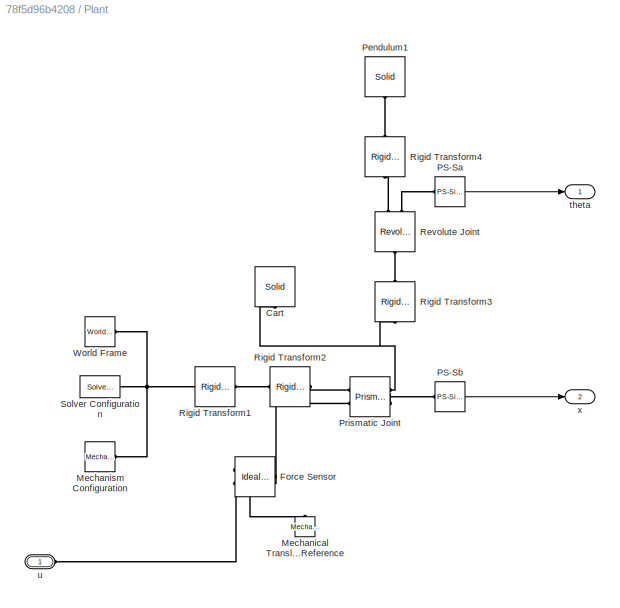
BLOCK [SubSystem] Plant
  Ports = [0, 2, 0, 0, 0, 1]
  RequestExecContextInheritance = off
  Variant = off
BLOCK [Reference] Plant/Cart  REF=sm_lib/Body Elements/Solid
  Ports = [0, 0, 0, 0, 0, 0, 1]
  SourceBlock = sm_lib/Body Elements/Solid
  SourceType = Solid
BLOCK [Reference] Plant/Force Sensor  REF=fl_lib/Mechanical/Mechanical Sensors/Ideal Force Sensor
  Ports = [0, 0, 0, 0, 0, 1, 2]
  SourceBlock = fl_lib/Mechanical/Mechanical Sensors/Ideal Force Sensor
  SourceType = Ideal Force Sensor
BLOCK [Reference] Plant/Mechanical Translational Reference  REF=fl_lib/Mechanical/Translational
Elements/Mechanical
Translational
Reference
  Ports = [0, 0, 0, 0, 0, 1]
  SourceBlock = fl_lib/Mechanical/Translational\nElements/Mechanical\nTranslational\nReference
  SourceType = Mechanical\nTranslational\nReference
BLOCK [Reference] Plant/Mechanism Configuration  REF=sm_lib/Utilities/Mechanism
Configuration
  Ports = [0, 0, 0, 0, 0, 0, 1]
  SourceBlock = sm_lib/Utilities/Mechanism\nConfiguration
  SourceType = Mechanism\nConfiguration
BLOCK [Reference] Plant/PS-Sa  REF=nesl_utility/PS-Simulink
Converter
  Ports = [0, 1, 0, 0, 0, 1]
  SourceBlock = nesl_utility/PS-Simulink\nConverter
  SourceType = PS-Simulink\nConverter
BLOCK [Reference] Plant/PS-Sb  REF=nesl_utility/PS-Simulink
Converter
  Ports = [0, 1, 0, 0, 0, 1]
  SourceBlock = nesl_utility/PS-Simulink\nConverter
  SourceType = PS-Simulink\nConverter
BLOCK [Reference] Plant/Pendulum1  REF=sm_lib/Body Elements/Solid
  Ports = [0, 0, 0, 0, 0, 0, 1]
  SourceBlock = sm_lib/Body Elements/Solid
  SourceType = Solid
BLOCK [Reference] Plant/Prismatic Joint  REF=sm_lib/Joints/Prismatic
Joint
  Ports = [0, 0, 0, 0, 0, 2, 2]
  SourceBlock = sm_lib/Joints/Prismatic\nJoint
  SourceType = Prismatic\nJoint
BLOCK [Reference] Plant/Revolute Joint  REF=sm_lib/Joints/Revolute Joint
  Ports = [0, 0, 0, 0, 0, 1, 2]
  SourceBlock = sm_lib/Joints/Revolute Joint
  SourceType = Revolute Joint
BLOCK [Reference] Plant/Rigid Transform1  REF=sm_lib/Frames and
Transforms/Rigid
Transform
  Ports = [0, 0, 0, 0, 0, 1, 1]
  SourceBlock = sm_lib/Frames and\nTransforms/Rigid\nTransform
  SourceType = Rigid\nTransform
BLOCK [Reference] Plant/Rigid Transform2  REF=sm_lib/Frames and
Transforms/Rigid
Transform
  Ports = [0, 0, 0, 0, 0, 1, 1]
  SourceBlock = sm_lib/Frames and\nTransforms/Rigid\nTransform
  SourceType = Rigid\nTransform
BLOCK [Reference] Plant/Rigid Transform3  REF=sm_lib/Frames and
Transforms/Rigid
Transform
  Ports = [0, 0, 0, 0, 0, 1, 1]
  SourceBlock = sm_lib/Frames and\nTransforms/Rigid\nTransform
  SourceType = Rigid\nTransform
BLOCK [Reference] Plant/Rigid Transform4  REF=sm_lib/Frames and
Transforms/Rigid
Transform
  Ports = [0, 0, 0, 0, 0, 1, 1]
  SourceBlock = sm_lib/Frames and\nTransforms/Rigid\nTransform
  SourceType = Rigid\nTransform
BLOCK [Reference] Plant/Solver Configuration  REF=nesl_utility/Solver
Configuration
  Ports = [0, 0, 0, 0, 0, 0, 1]
  SourceBlock = nesl_utility/Solver\nConfiguration
  SourceType = Solver\nConfiguration
BLOCK [Reference] Plant/World Frame  REF=sm_lib/Frames and
Transforms/World Frame
  Ports = [0, 0, 0, 0, 0, 0, 1]
  SourceBlock = sm_lib/Frames and\nTransforms/World Frame
  SourceType = World Frame
BLOCK [Outport] Plant/theta
  IconDisplay = Port number
BLOCK [PMIOPort] Plant/u
  Port = 1
  Side = Left
BLOCK [Outport] Plant/x
  IconDisplay = Port number
  Port = 2
ANNOTATION (root): This model shows how to use the Stepper Motor Driver and Stepper Motor blocks together to implement a controlled permanent magnet stepper motor. The model provides two controller options: one to control position and one to control speed. To change the controller type, right-click on the Stepper Controller block, select Variant->Override using->controller_choice==2 (Speed Controller).
ANNOTATION Linear Actuator/ /Position Controller/Control algorithm implemented on a microprocessor or dedicated discrete chip: Position Controller
ANNOTATION Linear Actuator/ /Position Controller/Control algorithm implemented on a microprocessor or dedicated discrete chip: The reference input defines the required angular position in terms of the number steps. For this stepper, the step size is 1.8 degrees. Hence a demand of 10 steps results in an angle change of 18 degrees. The step rate is set by the Pulse Generator's Pulse rate mask parameter.
ANNOTATION Linear Actuator/ /Speed Controller/Control algorithm implemented on a microprocessor or dedicated discrete chip: Speed Controller
ANNOTATION Linear Actuator/ /Speed Controller/Control algorithm implemented on a microprocessor or dedicated discrete chip: The speed controller turns the reference input into an absolute voltage demand for the voltage-controlled pulse generator and sets the reverse flag signal to +5 volts when the speed demand is negative.
ANNOTATION Linear Actuator/Position Controller/Control algorithm implemented on a microprocessor or dedicated discrete chip: Position Controller
ANNOTATION Linear Actuator/Position Controller/Control algorithm implemented on a microprocessor or dedicated discrete chip: The reference input defines the required angular position in terms of the number steps. For this stepper, the step size is 1.8 degrees. Hence a demand of 10 steps results in an angle change of 18 degrees. The step rate is set by the Pulse Generator's Pulse rate mask parameter.
LINE Demand:1 -> Linear Actuator:1
LINE Linear Actuator/ /Position Controller/Control algorithm implemented on a microprocessor or dedicated discrete chip/IC Analog Output 1/SL:1 -> Linear Actuator/ /Position Controller/Control algorithm implemented on a microprocessor or dedicated discrete chip/IC Analog Output 1/Simulink-PS Converter:1
LINE Linear Actuator/ /Position Controller/Control algorithm implemented on a microprocessor or dedicated discrete chip/IC Analog Output 2/SL:1 -> Linear Actuator/ /Position Controller/Control algorithm implemented on a microprocessor or dedicated discrete chip/IC Analog Output 2/Simulink-PS Converter:1
LINE Linear Actuator/ /Position Controller/Control algorithm implemented on a microprocessor or dedicated discrete chip/Logic2Volts1:1 -> Linear Actuator/ /Position Controller/Control algorithm implemented on a microprocessor or dedicated discrete chip/IC Analog Output 1:1
LINE Linear Actuator/ /Position Controller/Control algorithm implemented on a microprocessor or dedicated discrete chip/Logic2Volts2:1 -> Linear Actuator/ /Position Controller/Control algorithm implemented on a microprocessor or dedicated discrete chip/IC Analog Output 2:1
LINE Linear Actuator/ /Position Controller/Control algorithm implemented on a microprocessor or dedicated discrete chip/Pulse Generator/-1:1 -> Linear Actuator/ /Position Controller/Control algorithm implemented on a microprocessor or dedicated discrete chip/Pulse Generator/Sign:1
LINE Linear Actuator/ /Position Controller/Control algorithm implemented on a microprocessor or dedicated discrete chip/Pulse Generator/Abs:1 -> Linear Actuator/ /Position Controller/Control algorithm implemented on a microprocessor or dedicated discrete chip/Pulse Generator/Rate Transition:1
LINE Linear Actuator/ /Position Controller/Control algorithm implemented on a microprocessor or dedicated discrete chip/Pulse Generator/Product:1 -> Linear Actuator/ /Position Controller/Control algorithm implemented on a microprocessor or dedicated discrete chip/Pulse Generator/Pulse train:1
LINE Linear Actuator/ /Position Controller/Control algorithm implemented on a microprocessor or dedicated discrete chip/Pulse Generator/Pulse  demand:1 -> Linear Actuator/ /Position Controller/Control algorithm implemented on a microprocessor or dedicated discrete chip/Pulse Generator/Sum:1
LINE Linear Actuator/ /Position Controller/Control algorithm implemented on a microprocessor or dedicated discrete chip/Pulse Generator/Pulse Generator/-1:1 -> Linear Actuator/ /Position Controller/Control algorithm implemented on a microprocessor or dedicated discrete chip/Pulse Generator/Pulse Generator/p:1
LINE Linear Actuator/ /Position Controller/Control algorithm implemented on a microprocessor or dedicated discrete chip/Pulse Generator/Pulse Generator/Constant:1 -> Linear Actuator/ /Position Controller/Control algorithm implemented on a microprocessor or dedicated discrete chip/Pulse Generator/Pulse Generator/Sum:2
LINE Linear Actuator/ /Position Controller/Control algorithm implemented on a microprocessor or dedicated discrete chip/Pulse Generator/Pulse Generator/Gain:1 -> Linear Actuator/ /Position Controller/Control algorithm implemented on a microprocessor or dedicated discrete chip/Pulse Generator/Pulse Generator/Unit Delay, sample time 1//2*f):1
LINE Linear Actuator/ /Position Controller/Control algorithm implemented on a microprocessor or dedicated discrete chip/Pulse Generator/Pulse Generator/Sum:1 -> Linear Actuator/ /Position Controller/Control algorithm implemented on a microprocessor or dedicated discrete chip/Pulse Generator/Pulse Generator/-1:1
NET Linear Actuator/ /Position Controller/Control algorithm implemented on a microprocessor or dedicated discrete chip/Pulse Generator/Pulse Generator/Unit Delay, sample time 1//2*f):1 -> Linear Actuator/ /Position Controller/Control algorithm implemented on a microprocessor or dedicated discrete chip/Pulse Generator/Pulse Generator/Gain:1, Linear Actuator/ /Position Controller/Control algorithm implemented on a microprocessor or dedicated discrete chip/Pulse Generator/Pulse Generator/Sum:1
LINE Linear Actuator/ /Position Controller/Control algorithm implemented on a microprocessor or dedicated discrete chip/Pulse Generator/Pulse Generator:1 -> Linear Actuator/ /Position Controller/Control algorithm implemented on a microprocessor or dedicated discrete chip/Pulse Generator/Product:2
LINE Linear Actuator/ /Position Controller/Control algorithm implemented on a microprocessor or dedicated discrete chip/Pulse Generator/Rate Transition:1 -> Linear Actuator/ /Position Controller/Control algorithm implemented on a microprocessor or dedicated discrete chip/Pulse Generator/Product:1
NET Linear Actuator/ /Position Controller/Control algorithm implemented on a microprocessor or dedicated discrete chip/Pulse Generator/Saturation:1 -> Linear Actuator/ /Position Controller/Control algorithm implemented on a microprocessor or dedicated discrete chip/Pulse Generator/Abs:1, Linear Actuator/ /Position Controller/Control algorithm implemented on a microprocessor or dedicated discrete chip/Pulse Generator/Sum1:1
LINE Linear Actuator/ /Position Controller/Control algorithm implemented on a microprocessor or dedicated discrete chip/Pulse Generator/Sign:1 -> Linear Actuator/ /Position Controller/Control algorithm implemented on a microprocessor or dedicated discrete chip/Pulse Generator/[0,1]:1
LINE Linear Actuator/ /Position Controller/Control algorithm implemented on a microprocessor or dedicated discrete chip/Pulse Generator/Sum1:1 -> Linear Actuator/ /Position Controller/Control algorithm implemented on a microprocessor or dedicated discrete chip/Pulse Generator/Unit Delay, sample time 1//f:1
NET Linear Actuator/ /Position Controller/Control algorithm implemented on a microprocessor or dedicated discrete chip/Pulse Generator/Sum:1 -> Linear Actuator/ /Position Controller/Control algorithm implemented on a microprocessor or dedicated discrete chip/Pulse Generator/-1:1, Linear Actuator/ /Position Controller/Control algorithm implemented on a microprocessor or dedicated discrete chip/Pulse Generator/Saturation:1
NET Linear Actuator/ /Position Controller/Control algorithm implemented on a microprocessor or dedicated discrete chip/Pulse Generator/Unit Delay, sample time 1//f:1 -> Linear Actuator/ /Position Controller/Control algorithm implemented on a microprocessor or dedicated discrete chip/Pulse Generator/Sum1:2, Linear Actuator/ /Position Controller/Control algorithm implemented on a microprocessor or dedicated discrete chip/Pulse Generator/Sum:2
LINE Linear Actuator/ /Position Controller/Control algorithm implemented on a microprocessor or dedicated discrete chip/Pulse Generator/[0,1]:1 -> Linear Actuator/ /Position Controller/Control algorithm implemented on a microprocessor or dedicated discrete chip/Pulse Generator/Pulse direction:1
LINE Linear Actuator/ /Position Controller/Control algorithm implemented on a microprocessor or dedicated discrete chip/Pulse Generator:1 -> Linear Actuator/ /Position Controller/Control algorithm implemented on a microprocessor or dedicated discrete chip/Logic2Volts1:1
LINE Linear Actuator/ /Position Controller/Control algorithm implemented on a microprocessor or dedicated discrete chip/Pulse Generator:2 -> Linear Actuator/ /Position Controller/Control algorithm implemented on a microprocessor or dedicated discrete chip/Logic2Volts2:1
LINE Linear Actuator/ /Position Controller/Control algorithm implemented on a microprocessor or dedicated discrete chip/Rate Transition:1 -> Linear Actuator/ /Position Controller/Control algorithm implemented on a microprocessor or dedicated discrete chip/Pulse Generator:1
LINE Linear Actuator/ /Position Controller/Control algorithm implemented on a microprocessor or dedicated discrete chip/Reference:1 -> Linear Actuator/ /Position Controller/Control algorithm implemented on a microprocessor or dedicated discrete chip/Rate Transition:1
LINE Linear Actuator/ /Position Controller/Ref:1 -> Linear Actuator/ /Position Controller/Control algorithm implemented on a microprocessor or dedicated discrete chip:1
LINE Linear Actuator/ /Speed Controller/Control algorithm implemented on a microprocessor or dedicated discrete chip/Abs:1 -> Linear Actuator/ /Speed Controller/Control algorithm implemented on a microprocessor or dedicated discrete chip/Max step rate 100//s:1
LINE Linear Actuator/ /Speed Controller/Control algorithm implemented on a microprocessor or dedicated discrete chip/Compare To Constant:1 -> Linear Actuator/ /Speed Controller/Control algorithm implemented on a microprocessor or dedicated discrete chip/Data Type Conversion:1
LINE Linear Actuator/ /Speed Controller/Control algorithm implemented on a microprocessor or dedicated discrete chip/Data Type Conversion:1 -> Linear Actuator/ /Speed Controller/Control algorithm implemented on a microprocessor or dedicated discrete chip/Logic2Volts:1
LINE Linear Actuator/ /Speed Controller/Control algorithm implemented on a microprocessor or dedicated discrete chip/IC Analog Output 1/SL:1 -> Linear Actuator/ /Speed Controller/Control algorithm implemented on a microprocessor or dedicated discrete chip/IC Analog Output 1/Simulink-PS Converter:1
LINE Linear Actuator/ /Speed Controller/Control algorithm implemented on a microprocessor or dedicated discrete chip/IC Analog Output 2/SL:1 -> Linear Actuator/ /Speed Controller/Control algorithm implemented on a microprocessor or dedicated discrete chip/IC Analog Output 2/Simulink-PS Converter:1
LINE Linear Actuator/ /Speed Controller/Control algorithm implemented on a microprocessor or dedicated discrete chip/Logic2Volts:1 -> Linear Actuator/ /Speed Controller/Control algorithm implemented on a microprocessor or dedicated discrete chip/IC Analog Output 2:1
LINE Linear Actuator/ /Speed Controller/Control algorithm implemented on a microprocessor or dedicated discrete chip/Max step rate 100//s:1 -> Linear Actuator/ /Speed Controller/Control algorithm implemented on a microprocessor or dedicated discrete chip/StepRate2Volts:1
NET Linear Actuator/ /Speed Controller/Control algorithm implemented on a microprocessor or dedicated discrete chip/Reference:1 -> Linear Actuator/ /Speed Controller/Control algorithm implemented on a microprocessor or dedicated discrete chip/Abs:1, Linear Actuator/ /Speed Controller/Control algorithm implemented on a microprocessor or dedicated discrete chip/Compare To Constant:1
LINE Linear Actuator/ /Speed Controller/Control algorithm implemented on a microprocessor or dedicated discrete chip/StepRate2Volts:1 -> Linear Actuator/ /Speed Controller/Control algorithm implemented on a microprocessor or dedicated discrete chip/IC Analog Output 1:1
LINE Linear Actuator/ /Speed Controller/Ref:1 -> Linear Actuator/ /Speed Controller/Control algorithm implemented on a microprocessor or dedicated discrete chip:1
LINE Linear Actuator/ /Speed Controller/System-level model of an analog voltage-controlled pulse generator/Clock:1 -> Linear Actuator/ /Speed Controller/System-level model of an analog voltage-controlled pulse generator/Simulink-PS Converter:1
LINE Linear Actuator/In1:1 -> Linear Actuator/ :1
LINE Linear Actuator/Load Sensors/deg:1 -> Linear Actuator/Load Sensors/theta:1
LINE Linear Actuator/Load Sensors:1 -> Linear Actuator/Step Angle:1
LINE Linear Actuator/Meas 1/PS-Simulink Converter:1 -> Linear Actuator/Meas 1/SL:1
LINE Linear Actuator/Meas 1:1 -> Linear Actuator/PWM:1
LINE Linear Actuator/Position Controller/Control algorithm implemented on a microprocessor or dedicated discrete chip/IC Analog Output 1/SL:1 -> Linear Actuator/Position Controller/Control algorithm implemented on a microprocessor or dedicated discrete chip/IC Analog Output 1/Simulink-PS Converter:1
LINE Linear Actuator/Position Controller/Control algorithm implemented on a microprocessor or dedicated discrete chip/IC Analog Output 2/SL:1 -> Linear Actuator/Position Controller/Control algorithm implemented on a microprocessor or dedicated discrete chip/IC Analog Output 2/Simulink-PS Converter:1
LINE Linear Actuator/Position Controller/Control algorithm implemented on a microprocessor or dedicated discrete chip/Logic2Volts1:1 -> Linear Actuator/Position Controller/Control algorithm implemented on a microprocessor or dedicated discrete chip/IC Analog Output 1:1
LINE Linear Actuator/Position Controller/Control algorithm implemented on a microprocessor or dedicated discrete chip/Logic2Volts2:1 -> Linear Actuator/Position Controller/Control algorithm implemented on a microprocessor or dedicated discrete chip/IC Analog Output 2:1
LINE Linear Actuator/Position Controller/Control algorithm implemented on a microprocessor or dedicated discrete chip/Pulse Generator/-1:1 -> Linear Actuator/Position Controller/Control algorithm implemented on a microprocessor or dedicated discrete chip/Pulse Generator/Sign:1
LINE Linear Actuator/Position Controller/Control algorithm implemented on a microprocessor or dedicated discrete chip/Pulse Generator/Abs:1 -> Linear Actuator/Position Controller/Control algorithm implemented on a microprocessor or dedicated discrete chip/Pulse Generator/Rate Transition:1
LINE Linear Actuator/Position Controller/Control algorithm implemented on a microprocessor or dedicated discrete chip/Pulse Generator/Product:1 -> Linear Actuator/Position Controller/Control algorithm implemented on a microprocessor or dedicated discrete chip/Pulse Generator/Pulse train:1
LINE Linear Actuator/Position Controller/Control algorithm implemented on a microprocessor or dedicated discrete chip/Pulse Generator/Pulse  demand:1 -> Linear Actuator/Position Controller/Control algorithm implemented on a microprocessor or dedicated discrete chip/Pulse Generator/Sum:1
LINE Linear Actuator/Position Controller/Control algorithm implemented on a microprocessor or dedicated discrete chip/Pulse Generator/Pulse Generator/-1:1 -> Linear Actuator/Position Controller/Control algorithm implemented on a microprocessor or dedicated discrete chip/Pulse Generator/Pulse Generator/p:1
LINE Linear Actuator/Position Controller/Control algorithm implemented on a microprocessor or dedicated discrete chip/Pulse Generator/Pulse Generator/Constant:1 -> Linear Actuator/Position Controller/Control algorithm implemented on a microprocessor or dedicated discrete chip/Pulse Generator/Pulse Generator/Sum:2
LINE Linear Actuator/Position Controller/Control algorithm implemented on a microprocessor or dedicated discrete chip/Pulse Generator/Pulse Generator/Gain:1 -> Linear Actuator/Position Controller/Control algorithm implemented on a microprocessor or dedicated discrete chip/Pulse Generator/Pulse Generator/Unit Delay, sample time 1//2*f):1
LINE Linear Actuator/Position Controller/Control algorithm implemented on a microprocessor or dedicated discrete chip/Pulse Generator/Pulse Generator/Sum:1 -> Linear Actuator/Position Controller/Control algorithm implemented on a microprocessor or dedicated discrete chip/Pulse Generator/Pulse Generator/-1:1
NET Linear Actuator/Position Controller/Control algorithm implemented on a microprocessor or dedicated discrete chip/Pulse Generator/Pulse Generator/Unit Delay, sample time 1//2*f):1 -> Linear Actuator/Position Controller/Control algorithm implemented on a microprocessor or dedicated discrete chip/Pulse Generator/Pulse Generator/Gain:1, Linear Actuator/Position Controller/Control algorithm implemented on a microprocessor or dedicated discrete chip/Pulse Generator/Pulse Generator/Sum:1
LINE Linear Actuator/Position Controller/Control algorithm implemented on a microprocessor or dedicated discrete chip/Pulse Generator/Pulse Generator:1 -> Linear Actuator/Position Controller/Control algorithm implemented on a microprocessor or dedicated discrete chip/Pulse Generator/Product:2
LINE Linear Actuator/Position Controller/Control algorithm implemented on a microprocessor or dedicated discrete chip/Pulse Generator/Rate Transition:1 -> Linear Actuator/Position Controller/Control algorithm implemented on a microprocessor or dedicated discrete chip/Pulse Generator/Product:1
NET Linear Actuator/Position Controller/Control algorithm implemented on a microprocessor or dedicated discrete chip/Pulse Generator/Saturation:1 -> Linear Actuator/Position Controller/Control algorithm implemented on a microprocessor or dedicated discrete chip/Pulse Generator/Abs:1, Linear Actuator/Position Controller/Control algorithm implemented on a microprocessor or dedicated discrete chip/Pulse Generator/Sum1:1
LINE Linear Actuator/Position Controller/Control algorithm implemented on a microprocessor or dedicated discrete chip/Pulse Generator/Sign:1 -> Linear Actuator/Position Controller/Control algorithm implemented on a microprocessor or dedicated discrete chip/Pulse Generator/[0,1]:1
LINE Linear Actuator/Position Controller/Control algorithm implemented on a microprocessor or dedicated discrete chip/Pulse Generator/Sum1:1 -> Linear Actuator/Position Controller/Control algorithm implemented on a microprocessor or dedicated discrete chip/Pulse Generator/Unit Delay, sample time 1//f:1
NET Linear Actuator/Position Controller/Control algorithm implemented on a microprocessor or dedicated discrete chip/Pulse Generator/Sum:1 -> Linear Actuator/Position Controller/Control algorithm implemented on a microprocessor or dedicated discrete chip/Pulse Generator/-1:1, Linear Actuator/Position Controller/Control algorithm implemented on a microprocessor or dedicated discrete chip/Pulse Generator/Saturation:1
NET Linear Actuator/Position Controller/Control algorithm implemented on a microprocessor or dedicated discrete chip/Pulse Generator/Unit Delay, sample time 1//f:1 -> Linear Actuator/Position Controller/Control algorithm implemented on a microprocessor or dedicated discrete chip/Pulse Generator/Sum1:2, Linear Actuator/Position Controller/Control algorithm implemented on a microprocessor or dedicated discrete chip/Pulse Generator/Sum:2
LINE Linear Actuator/Position Controller/Control algorithm implemented on a microprocessor or dedicated discrete chip/Pulse Generator/[0,1]:1 -> Linear Actuator/Position Controller/Control algorithm implemented on a microprocessor or dedicated discrete chip/Pulse Generator/Pulse direction:1
LINE Linear Actuator/Position Controller/Control algorithm implemented on a microprocessor or dedicated discrete chip/Pulse Generator:1 -> Linear Actuator/Position Controller/Control algorithm implemented on a microprocessor or dedicated discrete chip/Logic2Volts1:1
LINE Linear Actuator/Position Controller/Control algorithm implemented on a microprocessor or dedicated discrete chip/Pulse Generator:2 -> Linear Actuator/Position Controller/Control algorithm implemented on a microprocessor or dedicated discrete chip/Logic2Volts2:1
LINE Linear Actuator/Position Controller/Control algorithm implemented on a microprocessor or dedicated discrete chip/Rate Transition:1 -> Linear Actuator/Position Controller/Control algorithm implemented on a microprocessor or dedicated discrete chip/Pulse Generator:1
LINE Linear Actuator/Position Controller/Control algorithm implemented on a microprocessor or dedicated discrete chip/Reference:1 -> Linear Actuator/Position Controller/Control algorithm implemented on a microprocessor or dedicated discrete chip/Rate Transition:1
LINE Linear Actuator/Position Controller/Ref:1 -> Linear Actuator/Position Controller/Control algorithm implemented on a microprocessor or dedicated discrete chip:1
LINE Linear Actuator/REV Scope/PS-Simulink Converter 2:1 -> Linear Actuator/REV Scope/REV:1
LINE Plant/PS-Sa:1 -> Plant/theta:1
LINE Plant/PS-Sb:1 -> Plant/x:1
PLINE Linear Actuator/ /Position Controller/Control algorithm implemented on a microprocessor or dedicated discrete chip/IC Analog Output 1/Controlled Voltage Source:LConn1 -- Linear Actuator/ /Position Controller/Control algorithm implemented on a microprocessor or dedicated discrete chip/IC Analog Output 1/V:RConn1
PLINE Linear Actuator/ /Position Controller/Control algorithm implemented on a microprocessor or dedicated discrete chip/IC Analog Output 1/Controlled Voltage Source:RConn1 -- Linear Actuator/ /Position Controller/Control algorithm implemented on a microprocessor or dedicated discrete chip/IC Analog Output 1/Simulink-PS Converter:RConn1
PLINE Linear Actuator/ /Position Controller/Control algorithm implemented on a microprocessor or dedicated discrete chip/IC Analog Output 1/Controlled Voltage Source:RConn2 -- Linear Actuator/ /Position Controller/Control algorithm implemented on a microprocessor or dedicated discrete chip/IC Analog Output 1/Electrical Reference:LConn1
PLINE Linear Actuator/ /Position Controller/Control algorithm implemented on a microprocessor or dedicated discrete chip/IC Analog Output 1:RConn1 -- Linear Actuator/ /Position Controller/Control algorithm implemented on a microprocessor or dedicated discrete chip/Vref:RConn1
PLINE Linear Actuator/ /Position Controller/Control algorithm implemented on a microprocessor or dedicated discrete chip/IC Analog Output 2/Controlled Voltage Source:LConn1 -- Linear Actuator/ /Position Controller/Control algorithm implemented on a microprocessor or dedicated discrete chip/IC Analog Output 2/V:RConn1
PLINE Linear Actuator/ /Position Controller/Control algorithm implemented on a microprocessor or dedicated discrete chip/IC Analog Output 2/Controlled Voltage Source:RConn1 -- Linear Actuator/ /Position Controller/Control algorithm implemented on a microprocessor or dedicated discrete chip/IC Analog Output 2/Simulink-PS Converter:RConn1
PLINE Linear Actuator/ /Position Controller/Control algorithm implemented on a microprocessor or dedicated discrete chip/IC Analog Output 2/Controlled Voltage Source:RConn2 -- Linear Actuator/ /Position Controller/Control algorithm implemented on a microprocessor or dedicated discrete chip/IC Analog Output 2/Electrical Reference:LConn1
PLINE Linear Actuator/ /Position Controller/Control algorithm implemented on a microprocessor or dedicated discrete chip/IC Analog Output 2:RConn1 -- Linear Actuator/ /Position Controller/Control algorithm implemented on a microprocessor or dedicated discrete chip/REV:RConn1
PLINE Linear Actuator/ /Position Controller/Control algorithm implemented on a microprocessor or dedicated discrete chip:RConn1 -- Linear Actuator/ /Position Controller/REV:RConn1
PLINE Linear Actuator/ /Position Controller/Control algorithm implemented on a microprocessor or dedicated discrete chip:RConn2 -- Linear Actuator/ /Position Controller/PWM:RConn1
PNET net1: Linear Actuator/ /Speed Controller/0v:RConn1 -- Linear Actuator/ /Speed Controller/Electrical Reference1:LConn1 -- Linear Actuator/ /Speed Controller/System-level model of an analog voltage-controlled pulse generator:RConn2
PLINE Linear Actuator/ /Speed Controller/Control algorithm implemented on a microprocessor or dedicated discrete chip/IC Analog Output 1/Controlled Voltage Source:LConn1 -- Linear Actuator/ /Speed Controller/Control algorithm implemented on a microprocessor or dedicated discrete chip/IC Analog Output 1/V:RConn1
PLINE Linear Actuator/ /Speed Controller/Control algorithm implemented on a microprocessor or dedicated discrete chip/IC Analog Output 1/Controlled Voltage Source:RConn1 -- Linear Actuator/ /Speed Controller/Control algorithm implemented on a microprocessor or dedicated discrete chip/IC Analog Output 1/Simulink-PS Converter:RConn1
PLINE Linear Actuator/ /Speed Controller/Control algorithm implemented on a microprocessor or dedicated discrete chip/IC Analog Output 1/Controlled Voltage Source:RConn2 -- Linear Actuator/ /Speed Controller/Control algorithm implemented on a microprocessor or dedicated discrete chip/IC Analog Output 1/Electrical Reference:LConn1
PLINE Linear Actuator/ /Speed Controller/Control algorithm implemented on a microprocessor or dedicated discrete chip/IC Analog Output 1:RConn1 -- Linear Actuator/ /Speed Controller/Control algorithm implemented on a microprocessor or dedicated discrete chip/Vref:RConn1
PLINE Linear Actuator/ /Speed Controller/Control algorithm implemented on a microprocessor or dedicated discrete chip/IC Analog Output 2/Controlled Voltage Source:LConn1 -- Linear Actuator/ /Speed Controller/Control algorithm implemented on a microprocessor or dedicated discrete chip/IC Analog Output 2/V:RConn1
PLINE Linear Actuator/ /Speed Controller/Control algorithm implemented on a microprocessor or dedicated discrete chip/IC Analog Output 2/Controlled Voltage Source:RConn1 -- Linear Actuator/ /Speed Controller/Control algorithm implemented on a microprocessor or dedicated discrete chip/IC Analog Output 2/Simulink-PS Converter:RConn1
PLINE Linear Actuator/ /Speed Controller/Control algorithm implemented on a microprocessor or dedicated discrete chip/IC Analog Output 2/Controlled Voltage Source:RConn2 -- Linear Actuator/ /Speed Controller/Control algorithm implemented on a microprocessor or dedicated discrete chip/IC Analog Output 2/Electrical Reference:LConn1
PLINE Linear Actuator/ /Speed Controller/Control algorithm implemented on a microprocessor or dedicated discrete chip/IC Analog Output 2:RConn1 -- Linear Actuator/ /Speed Controller/Control algorithm implemented on a microprocessor or dedicated discrete chip/REV:RConn1
PLINE Linear Actuator/ /Speed Controller/Control algorithm implemented on a microprocessor or dedicated discrete chip:RConn1 -- Linear Actuator/ /Speed Controller/REV:RConn1
PLINE Linear Actuator/ /Speed Controller/Control algorithm implemented on a microprocessor or dedicated discrete chip:RConn2 -- Linear Actuator/ /Speed Controller/System-level model of an analog voltage-controlled pulse generator:LConn1
PLINE Linear Actuator/ /Speed Controller/PWM:RConn1 -- Linear Actuator/ /Speed Controller/System-level model of an analog voltage-controlled pulse generator:RConn1
PLINE Linear Actuator/ /Speed Controller/System-level model of an analog voltage-controlled pulse generator/0v:RConn1 -- Linear Actuator/ /Speed Controller/System-level model of an analog voltage-controlled pulse generator/Controlled Voltage Source:RConn2
PLINE Linear Actuator/ /Speed Controller/System-level model of an analog voltage-controlled pulse generator/2*pi:LConn1 -- Linear Actuator/ /Speed Controller/System-level model of an analog voltage-controlled pulse generator/Max step rate =100:RConn1
PLINE Linear Actuator/ /Speed Controller/System-level model of an analog voltage-controlled pulse generator/2*pi:RConn1 -- Linear Actuator/ /Speed Controller/System-level model of an analog voltage-controlled pulse generator/PS Product:LConn1
PLINE Linear Actuator/ /Speed Controller/System-level model of an analog voltage-controlled pulse generator/Controlled Voltage Source:LConn1 -- Linear Actuator/ /Speed Controller/System-level model of an analog voltage-controlled pulse generator/PWM:RConn1
PLINE Linear Actuator/ /Speed Controller/System-level model of an analog voltage-controlled pulse generator/Controlled Voltage Source:RConn1 -- Linear Actuator/ /Speed Controller/System-level model of an analog voltage-controlled pulse generator/logic2volts:RConn1
PLINE Linear Actuator/ /Speed Controller/System-level model of an analog voltage-controlled pulse generator/Electrical Reference2:LConn1 -- Linear Actuator/ /Speed Controller/System-level model of an analog voltage-controlled pulse generator/Voltage Sensor:RConn2
PLINE Linear Actuator/ /Speed Controller/System-level model of an analog voltage-controlled pulse generator/Max step rate =100:LConn1 -- Linear Actuator/ /Speed Controller/System-level model of an analog voltage-controlled pulse generator/Normalize to 1:RConn1
PLINE Linear Actuator/ /Speed Controller/System-level model of an analog voltage-controlled pulse generator/Normalize to 1:LConn1 -- Linear Actuator/ /Speed Controller/System-level model of an analog voltage-controlled pulse generator/Voltage Sensor:RConn1
PLINE Linear Actuator/ /Speed Controller/System-level model of an analog voltage-controlled pulse generator/PS Product:LConn2 -- Linear Actuator/ /Speed Controller/System-level model of an analog voltage-controlled pulse generator/Simulink-PS Converter:RConn1
PLINE Linear Actuator/ /Speed Controller/System-level model of an analog voltage-controlled pulse generator/PS Product:RConn1 -- Linear Actuator/ /Speed Controller/System-level model of an analog voltage-controlled pulse generator/PS Sine:LConn1
PLINE Linear Actuator/ /Speed Controller/System-level model of an analog voltage-controlled pulse generator/PS Sign:LConn1 -- Linear Actuator/ /Speed Controller/System-level model of an analog voltage-controlled pulse generator/PS Sine:RConn1
PLINE Linear Actuator/ /Speed Controller/System-level model of an analog voltage-controlled pulse generator/PS Sign:RConn1 -- Linear Actuator/ /Speed Controller/System-level model of an analog voltage-controlled pulse generator/[0,1]:LConn1
PLINE Linear Actuator/ /Speed Controller/System-level model of an analog voltage-controlled pulse generator/Voltage Sensor:LConn1 -- Linear Actuator/ /Speed Controller/System-level model of an analog voltage-controlled pulse generator/Vref:RConn1
PLINE Linear Actuator/ /Speed Controller/System-level model of an analog voltage-controlled pulse generator/[0,1]:RConn1 -- Linear Actuator/ /Speed Controller/System-level model of an analog voltage-controlled pulse generator/logic2volts:LConn1
PNET net2: Linear Actuator/ :RConn1 -- Linear Actuator/Meas 1:LConn1 -- Linear Actuator/Stepper Motor Driver:LConn1
PLINE Linear Actuator/ :RConn2 -- Linear Actuator/Stepper Motor Driver:LConn3
PLINE Linear Actuator/Belt:LConn1 -- Linear Actuator/Gear Box:RConn1
PLINE Linear Actuator/Belt:RConn1 -- Linear Actuator/Conn1:RConn1
PNET net3: Linear Actuator/Electrical Reference1:LConn1 -- Linear Actuator/REV Scope:LConn1 -- Linear Actuator/Stepper Motor Driver:LConn2 -- Linear Actuator/Stepper Motor Driver:RConn1 -- Linear Actuator/Stepper Motor Driver:RConn4 -- Linear Actuator/Stepper Motor:LConn1 -- Linear Actuator/Stepper Motor:LConn4
PNET net4: Linear Actuator/Gear Box:LConn1 -- Linear Actuator/Load Sensors:LConn1 -- Linear Actuator/Stepper Motor:RConn1
PLINE Linear Actuator/Load Sensors/C:RConn1 -- Linear Actuator/Load Sensors/Ideal Rotational Motion Sensor:RConn1
PLINE Linear Actuator/Load Sensors/Ideal Rotational Motion Sensor:LConn1 -- Linear Actuator/Load Sensors/R:RConn1
PLINE Linear Actuator/Load Sensors/Ideal Rotational Motion Sensor:RConn3 -- Linear Actuator/Load Sensors/deg:LConn1
PNET net5: Linear Actuator/Load Sensors:LConn2 -- Linear Actuator/Mechanical Rotational Reference1:LConn1 -- Linear Actuator/Stepper Motor:RConn2
PLINE Linear Actuator/Meas 1/Electrical Reference:LConn1 -- Linear Actuator/Meas 1/Voltage Sensor:RConn2
PLINE Linear Actuator/Meas 1/PS-Simulink Converter:LConn1 -- Linear Actuator/Meas 1/Voltage Sensor:RConn1
PLINE Linear Actuator/Meas 1/V:RConn1 -- Linear Actuator/Meas 1/Voltage Sensor:LConn1
PLINE Linear Actuator/Position Controller/Control algorithm implemented on a microprocessor or dedicated discrete chip/IC Analog Output 1/Controlled Voltage Source:LConn1 -- Linear Actuator/Position Controller/Control algorithm implemented on a microprocessor or dedicated discrete chip/IC Analog Output 1/V:RConn1
PLINE Linear Actuator/Position Controller/Control algorithm implemented on a microprocessor or dedicated discrete chip/IC Analog Output 1/Controlled Voltage Source:RConn1 -- Linear Actuator/Position Controller/Control algorithm implemented on a microprocessor or dedicated discrete chip/IC Analog Output 1/Simulink-PS Converter:RConn1
PLINE Linear Actuator/Position Controller/Control algorithm implemented on a microprocessor or dedicated discrete chip/IC Analog Output 1/Controlled Voltage Source:RConn2 -- Linear Actuator/Position Controller/Control algorithm implemented on a microprocessor or dedicated discrete chip/IC Analog Output 1/Electrical Reference:LConn1
PLINE Linear Actuator/Position Controller/Control algorithm implemented on a microprocessor or dedicated discrete chip/IC Analog Output 1:RConn1 -- Linear Actuator/Position Controller/Control algorithm implemented on a microprocessor or dedicated discrete chip/Vref:RConn1
PLINE Linear Actuator/Position Controller/Control algorithm implemented on a microprocessor or dedicated discrete chip/IC Analog Output 2/Controlled Voltage Source:LConn1 -- Linear Actuator/Position Controller/Control algorithm implemented on a microprocessor or dedicated discrete chip/IC Analog Output 2/V:RConn1
PLINE Linear Actuator/Position Controller/Control algorithm implemented on a microprocessor or dedicated discrete chip/IC Analog Output 2/Controlled Voltage Source:RConn1 -- Linear Actuator/Position Controller/Control algorithm implemented on a microprocessor or dedicated discrete chip/IC Analog Output 2/Simulink-PS Converter:RConn1
PLINE Linear Actuator/Position Controller/Control algorithm implemented on a microprocessor or dedicated discrete chip/IC Analog Output 2/Controlled Voltage Source:RConn2 -- Linear Actuator/Position Controller/Control algorithm implemented on a microprocessor or dedicated discrete chip/IC Analog Output 2/Electrical Reference:LConn1
PLINE Linear Actuator/Position Controller/Control algorithm implemented on a microprocessor or dedicated discrete chip/IC Analog Output 2:RConn1 -- Linear Actuator/Position Controller/Control algorithm implemented on a microprocessor or dedicated discrete chip/REV:RConn1
PLINE Linear Actuator/Position Controller/Control algorithm implemented on a microprocessor or dedicated discrete chip:RConn1 -- Linear Actuator/Position Controller/REV:RConn1
PLINE Linear Actuator/Position Controller/Control algorithm implemented on a microprocessor or dedicated discrete chip:RConn2 -- Linear Actuator/Position Controller/PWM:RConn1
PLINE Linear Actuator/REV Scope/Electrical Reference1:LConn1 -- Linear Actuator/REV Scope/Voltage Sensor:RConn2
PLINE Linear Actuator/REV Scope/PS-Simulink Converter 2:LConn1 -- Linear Actuator/REV Scope/Voltage Sensor:RConn1
PLINE Linear Actuator/REV Scope/Voltage Sensor:LConn1 -- Linear Actuator/REV Scope/u:RConn1
PLINE Linear Actuator/Stepper Motor Driver:RConn2 -- Linear Actuator/Stepper Motor:LConn2
PLINE Linear Actuator/Stepper Motor Driver:RConn3 -- Linear Actuator/Stepper Motor:LConn3
PLINE Linear Actuator:RConn1 -- Plant:LConn1
PNET net6: Plant/Cart:RConn1 -- Plant/Prismatic Joint:RConn1 -- Plant/Rigid Transform3:LConn1
PLINE Plant/Force Sensor:LConn1 -- Plant/u:RConn1
PLINE Plant/Force Sensor:RConn1 -- Plant/Mechanical Translational Reference:LConn1
PLINE Plant/Force Sensor:RConn2 -- Plant/Prismatic Joint:LConn2
PNET net7: Plant/Mechanism Configuration:RConn1 -- Plant/Rigid Transform1:LConn1 -- Plant/Solver Configuration:RConn1 -- Plant/World Frame:RConn1
PLINE Plant/PS-Sa:LConn1 -- Plant/Revolute Joint:RConn2
PLINE Plant/PS-Sb:LConn1 -- Plant/Prismatic Joint:RConn2
PLINE Plant/Pendulum1:RConn1 -- Plant/Rigid Transform4:RConn1
PLINE Plant/Prismatic Joint:LConn1 -- Plant/Rigid Transform2:RConn1
PLINE Plant/Revolute Joint:LConn1 -- Plant/Rigid Transform3:RConn1
PLINE Plant/Revolute Joint:RConn1 -- Plant/Rigid Transform4:LConn1
PLINE Plant/Rigid Transform1:RConn1 -- Plant/Rigid Transform2:LConn1
note: NET lines group one-source signal fan-out (src -> all destinations, sorted); 1:1 wires keep LINE; PNET lines group multi-terminal physical nets as a canonical sorted terminal list (undirected conserving connections); 2-terminal nets keep the pairwise PLINE form
